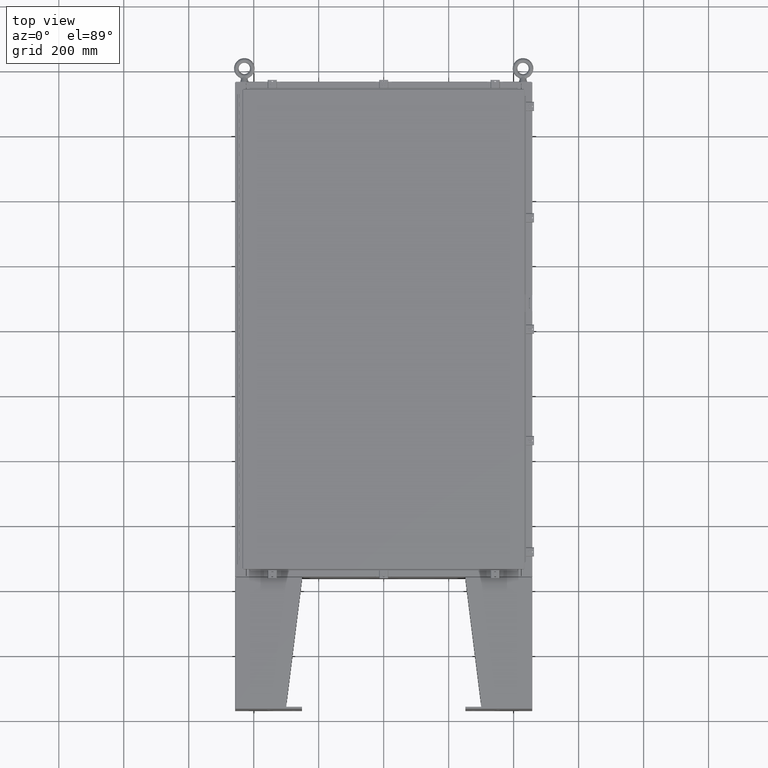
[diagram: clean part render]
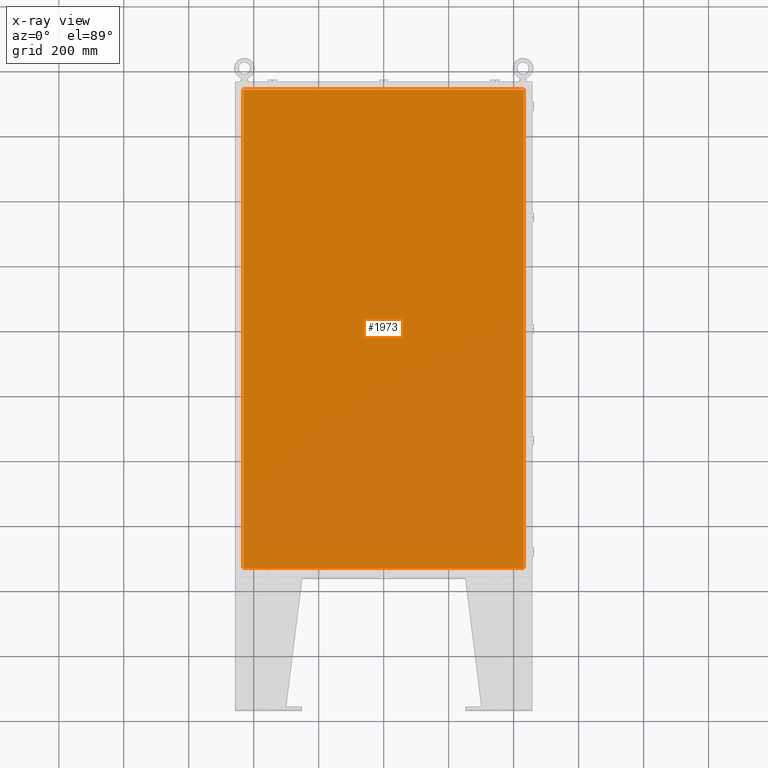
[diagram: x-ray — body ghosted, one internal face saturated and labeled with its STEP entity id]
A machine part, top view, then the same camera in x-ray: the body is ghosted and one INTERNAL B-rep face — a face not visible from any outside direction — is saturated and labeled: STEP entity #1973.
In plain terms, the highlighted planar face has unit normal (0, 0, -1).
Its self-contained STEP definition (entity closure, byte-faithful):
#1025 = VERTEX_POINT ( 'NONE', #21438 ) ;
#1973 = ADVANCED_FACE ( 'NONE', ( #18505 ), #38580, .T. ) ;
#7337 = CARTESIAN_POINT ( 'NONE',  ( 16.99030000000000500, 29.00630000000000300, -0.07469999999999804600 ) ) ;
#7537 = ORIENTED_EDGE ( 'NONE', *, *, #58274, .F. ) ;
#12630 = DIRECTION ( 'NONE',  ( -1.000000000000000000, -0.0000000000000000000, -0.0000000000000000000 ) ) ;
#15721 = VERTEX_POINT ( 'NONE', #38839 ) ;
#18186 = VERTEX_POINT ( 'NONE', #30348 ) ;
#18505 = FACE_OUTER_BOUND ( 'NONE', #33487, .T. ) ;
#20366 = VERTEX_POINT ( 'NONE', #33691 ) ;
#21438 = CARTESIAN_POINT ( 'NONE',  ( 16.99030000000000500, 29.00630000000000000, -0.07470000000000000300 ) ) ;
#22609 = CARTESIAN_POINT ( 'NONE',  ( -16.99029999999999400, 29.00630000000000000, -0.07469999999999582500 ) ) ;
#23088 = EDGE_CURVE ( 'NONE', #15721, #18186, #54187, .T. ) ;
#23594 = VECTOR ( 'NONE', #59321, 39.37007874015748100 ) ;
#27691 = VECTOR ( 'NONE', #40718, 39.37007874015748100 ) ;
#30348 = CARTESIAN_POINT ( 'NONE',  ( 16.99030000000000500, -29.00630000000000000, -0.07470000000000000300 ) ) ;
#33128 = VECTOR ( 'NONE', #12630, 39.37007874015748100 ) ;
#33478 = DIRECTION ( 'NONE',  ( -1.000000000000000000, 0.0000000000000000000, -0.0000000000000000000 ) ) ;
#33487 = EDGE_LOOP ( 'NONE', ( #61000, #63624, #7537, #44021 ) ) ;
#33691 = CARTESIAN_POINT ( 'NONE',  ( -16.99029999999999400, 29.00630000000000000, -0.07470000000000000300 ) ) ;
#37887 = DIRECTION ( 'NONE',  ( 0.0000000000000000000, 0.0000000000000000000, -1.000000000000000000 ) ) ;
#38580 = PLANE ( 'NONE',  #52066 ) ;
#38839 = CARTESIAN_POINT ( 'NONE',  ( -16.99029999999999800, -29.00630000000000000, -0.07470000000000000300 ) ) ;
#40718 = DIRECTION ( 'NONE',  ( 0.0000000000000000000, 1.000000000000000000, 0.0000000000000000000 ) ) ;
#43841 = CARTESIAN_POINT ( 'NONE',  ( -16.99029999999999800, -29.00630000000000300, -0.07469999999999804600 ) ) ;
#44021 = ORIENTED_EDGE ( 'NONE', *, *, #55569, .F. ) ;
#44959 = LINE ( 'NONE', #61880, #27691 ) ;
#45489 = CARTESIAN_POINT ( 'NONE',  ( 0.0000000000000000000, 0.0000000000000000000, -0.07470000000000000300 ) ) ;
#47220 = LINE ( 'NONE', #7337, #33128 ) ;
#51523 = LINE ( 'NONE', #22609, #23594 ) ;
#52066 = AXIS2_PLACEMENT_3D ( 'NONE', #45489, #37887, #33478 ) ;
#54187 = LINE ( 'NONE', #43841, #55839 ) ;
#55569 = EDGE_CURVE ( 'NONE', #1025, #20366, #47220, .T. ) ;
#55839 = VECTOR ( 'NONE', #59705, 39.37007874015748100 ) ;
#57957 = EDGE_CURVE ( 'NONE', #18186, #1025, #44959, .T. ) ;
#58274 = EDGE_CURVE ( 'NONE', #20366, #15721, #51523, .T. ) ;
#59321 = DIRECTION ( 'NONE',  ( 0.0000000000000000000, -1.000000000000000000, 0.0000000000000000000 ) ) ;
#59705 = DIRECTION ( 'NONE',  ( 1.000000000000000000, -0.0000000000000000000, -0.0000000000000000000 ) ) ;
#61000 = ORIENTED_EDGE ( 'NONE', *, *, #57957, .F. ) ;
#61880 = CARTESIAN_POINT ( 'NONE',  ( 16.99030000000000500, -29.00630000000000000, -0.07470000000000019700 ) ) ;
#63624 = ORIENTED_EDGE ( 'NONE', *, *, #23088, .F. ) ;